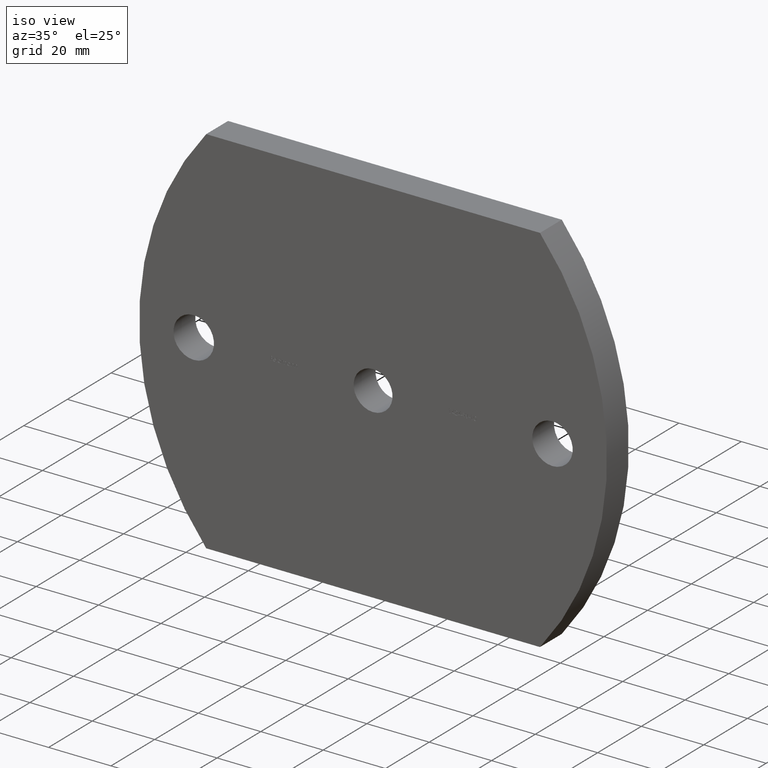
[diagram: clean part render]
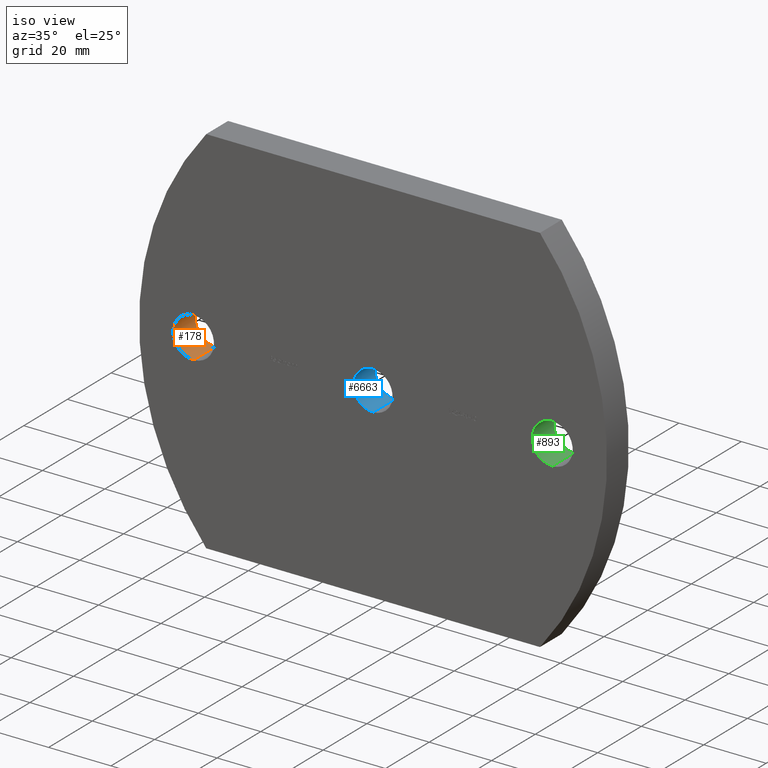
[diagram: same view with three faces highlighted in distinct colors, each labeled with its STEP entity id]
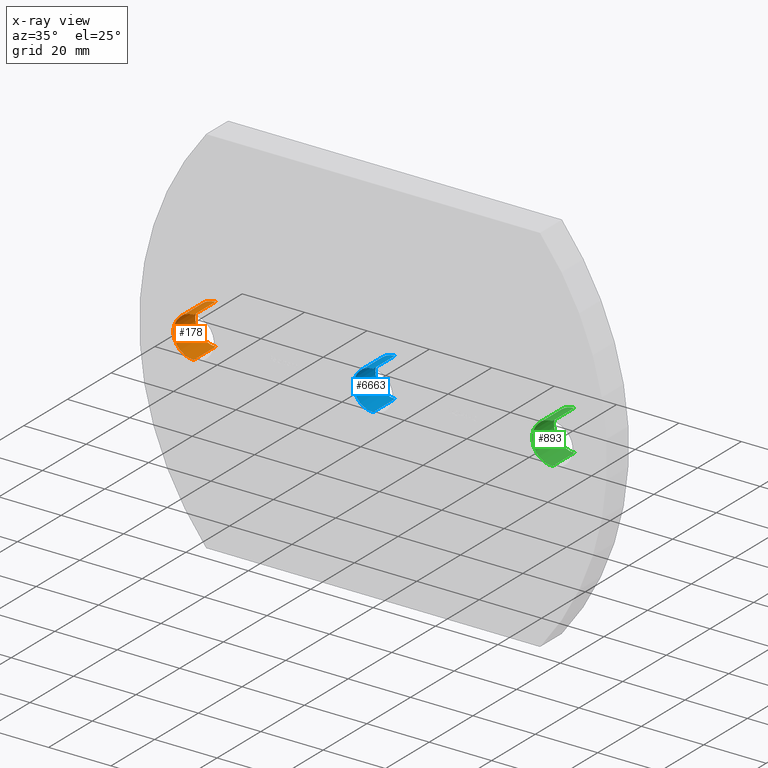
[diagram: x-ray of the same camera — body ghosted, the three highlighted faces saturated]
A machine part, iso view with three faces highlighted in distinct colors.
The next image is the same camera in x-ray (body ghosted, the three faces saturated) — at least one of them is partly hidden behind the body in this view.
Their STEP definitions:

[orange] entity #178 — the highlighted cylindrical surface (edge-blend (fillet) strip) has radius 6.5 mm, axis along (-0, 1, -0).
#178 = ADVANCED_FACE ( 'NONE', ( #269 ), #8909, .F. ) ;
#269 = FACE_OUTER_BOUND ( 'NONE', #1203, .T. ) ;
#378 = ORIENTED_EDGE ( 'NONE', *, *, #2767, .T. ) ;
#464 = EDGE_CURVE ( 'NONE', #10094, #6826, #5516, .T. ) ;
#664 = DIRECTION ( 'NONE',  ( 0.0000000000000000000, 0.0000000000000000000, 1.000000000000000000 ) ) ;
#1203 = EDGE_LOOP ( 'NONE', ( #5629, #378, #7444, #3037 ) ) ;
#1397 = CARTESIAN_POINT ( 'NONE',  ( -57.50000000000000000, 0.0000000000000000000, -6.500000000000000900 ) ) ;
#1818 = LINE ( 'NONE', #10054, #7800 ) ;
#1913 = DIRECTION ( 'NONE',  ( 0.0000000000000000000, 0.0000000000000000000, 1.000000000000000000 ) ) ;
#2084 = DIRECTION ( 'NONE',  ( 0.0000000000000000000, 1.000000000000000000, 0.0000000000000000000 ) ) ;
#2468 = CARTESIAN_POINT ( 'NONE',  ( -57.50000000000000000, 10.00000000000000000, -6.500000000000000900 ) ) ;
#2767 = EDGE_CURVE ( 'NONE', #4330, #6836, #1818, .T. ) ;
#3008 = CARTESIAN_POINT ( 'NONE',  ( -57.50000000000000000, 0.0000000000000000000, 6.500000000000000900 ) ) ;
#3037 = ORIENTED_EDGE ( 'NONE', *, *, #464, .F. ) ;
#4330 = VERTEX_POINT ( 'NONE', #1397 ) ;
#4344 = CARTESIAN_POINT ( 'NONE',  ( -57.50000000000000000, 0.0000000000000000000, 0.0000000000000000000 ) ) ;
#4585 = CARTESIAN_POINT ( 'NONE',  ( -57.50000000000000000, 0.0000000000000000000, 0.0000000000000000000 ) ) ;
#4904 = AXIS2_PLACEMENT_3D ( 'NONE', #4585, #7713, #664 ) ;
#5068 = DIRECTION ( 'NONE',  ( 0.0000000000000000000, 0.0000000000000000000, 1.000000000000000000 ) ) ;
#5466 = AXIS2_PLACEMENT_3D ( 'NONE', #7233, #6483, #1913 ) ;
#5516 = LINE ( 'NONE', #3008, #7102 ) ;
#5629 = ORIENTED_EDGE ( 'NONE', *, *, #9588, .F. ) ;
#5703 = CIRCLE ( 'NONE', #5466, 6.500000000000000900 ) ;
#6483 = DIRECTION ( 'NONE',  ( 0.0000000000000000000, 1.000000000000000000, 0.0000000000000000000 ) ) ;
#6826 = VERTEX_POINT ( 'NONE', #9459 ) ;
#6836 = VERTEX_POINT ( 'NONE', #2468 ) ;
#7102 = VECTOR ( 'NONE', #8449, 1000.000000000000000 ) ;
#7233 = CARTESIAN_POINT ( 'NONE',  ( -57.50000000000000000, 10.00000000000000000, 0.0000000000000000000 ) ) ;
#7322 = CARTESIAN_POINT ( 'NONE',  ( -57.50000000000000000, 0.0000000000000000000, 6.500000000000000900 ) ) ;
#7444 = ORIENTED_EDGE ( 'NONE', *, *, #9520, .T. ) ;
#7569 = AXIS2_PLACEMENT_3D ( 'NONE', #4344, #2084, #5068 ) ;
#7713 = DIRECTION ( 'NONE',  ( -0.0000000000000000000, 1.000000000000000000, -0.0000000000000000000 ) ) ;
#7800 = VECTOR ( 'NONE', #9201, 1000.000000000000000 ) ;
#8449 = DIRECTION ( 'NONE',  ( -0.0000000000000000000, 1.000000000000000000, -0.0000000000000000000 ) ) ;
#8606 = CIRCLE ( 'NONE', #7569, 6.500000000000000900 ) ;
#8909 = CYLINDRICAL_SURFACE ( 'NONE', #4904, 6.500000000000000900 ) ;
#9201 = DIRECTION ( 'NONE',  ( -0.0000000000000000000, 1.000000000000000000, -0.0000000000000000000 ) ) ;
#9459 = CARTESIAN_POINT ( 'NONE',  ( -57.50000000000000000, 10.00000000000000000, 6.500000000000000900 ) ) ;
#9520 = EDGE_CURVE ( 'NONE', #6836, #6826, #5703, .T. ) ;
#9588 = EDGE_CURVE ( 'NONE', #4330, #10094, #8606, .T. ) ;
#10054 = CARTESIAN_POINT ( 'NONE',  ( -57.50000000000000000, 0.0000000000000000000, -6.500000000000000900 ) ) ;
#10094 = VERTEX_POINT ( 'NONE', #7322 ) ;

[blue] entity #6663 — the highlighted cylindrical surface (edge-blend (fillet) strip) has radius 6.25 mm, axis along (-0, 1, -0).
#293 = VERTEX_POINT ( 'NONE', #5655 ) ;
#571 = CARTESIAN_POINT ( 'NONE',  ( 0.0000000000000000000, 0.0000000000000000000, 6.250000000000000000 ) ) ;
#575 = EDGE_CURVE ( 'NONE', #4082, #1306, #2472, .T. ) ;
#717 = CARTESIAN_POINT ( 'NONE',  ( 0.0000000000000000000, 0.0000000000000000000, 0.0000000000000000000 ) ) ;
#836 = DIRECTION ( 'NONE',  ( 0.0000000000000000000, 0.0000000000000000000, 1.000000000000000000 ) ) ;
#1149 = CARTESIAN_POINT ( 'NONE',  ( 7.654042494670957600E-016, 0.0000000000000000000, -6.250000000000000000 ) ) ;
#1293 = DIRECTION ( 'NONE',  ( -0.0000000000000000000, 1.000000000000000000, -0.0000000000000000000 ) ) ;
#1306 = VERTEX_POINT ( 'NONE', #6163 ) ;
#1722 = EDGE_CURVE ( 'NONE', #1306, #293, #9985, .T. ) ;
#2003 = ORIENTED_EDGE ( 'NONE', *, *, #1722, .T. ) ;
#2045 = ORIENTED_EDGE ( 'NONE', *, *, #2156, .F. ) ;
#2156 = EDGE_CURVE ( 'NONE', #7478, #293, #8632, .T. ) ;
#2472 = LINE ( 'NONE', #1149, #4071 ) ;
#2808 = DIRECTION ( 'NONE',  ( 0.0000000000000000000, 1.000000000000000000, 0.0000000000000000000 ) ) ;
#2811 = EDGE_LOOP ( 'NONE', ( #8690, #2971, #2003, #2045 ) ) ;
#2971 = ORIENTED_EDGE ( 'NONE', *, *, #575, .T. ) ;
#3801 = DIRECTION ( 'NONE',  ( -0.0000000000000000000, 1.000000000000000000, -0.0000000000000000000 ) ) ;
#3980 = AXIS2_PLACEMENT_3D ( 'NONE', #717, #3801, #8502 ) ;
#4071 = VECTOR ( 'NONE', #9270, 1000.000000000000000 ) ;
#4082 = VERTEX_POINT ( 'NONE', #8812 ) ;
#4863 = VECTOR ( 'NONE', #1293, 1000.000000000000000 ) ;
#5245 = CARTESIAN_POINT ( 'NONE',  ( 0.0000000000000000000, 0.0000000000000000000, 6.250000000000000000 ) ) ;
#5252 = FACE_OUTER_BOUND ( 'NONE', #2811, .T. ) ;
#5620 = DIRECTION ( 'NONE',  ( 0.0000000000000000000, 1.000000000000000000, 0.0000000000000000000 ) ) ;
#5655 = CARTESIAN_POINT ( 'NONE',  ( 0.0000000000000000000, 10.00000000000000000, 6.250000000000000000 ) ) ;
#6163 = CARTESIAN_POINT ( 'NONE',  ( 7.654042494670957600E-016, 10.00000000000000000, -6.250000000000000000 ) ) ;
#6663 = ADVANCED_FACE ( 'NONE', ( #5252 ), #9748, .F. ) ;
#6752 = AXIS2_PLACEMENT_3D ( 'NONE', #7467, #2808, #8194 ) ;
#7467 = CARTESIAN_POINT ( 'NONE',  ( 0.0000000000000000000, 10.00000000000000000, 0.0000000000000000000 ) ) ;
#7478 = VERTEX_POINT ( 'NONE', #571 ) ;
#7752 = EDGE_CURVE ( 'NONE', #4082, #7478, #8417, .T. ) ;
#7909 = CARTESIAN_POINT ( 'NONE',  ( 0.0000000000000000000, 0.0000000000000000000, 0.0000000000000000000 ) ) ;
#8016 = AXIS2_PLACEMENT_3D ( 'NONE', #7909, #5620, #836 ) ;
#8194 = DIRECTION ( 'NONE',  ( 0.0000000000000000000, 0.0000000000000000000, 1.000000000000000000 ) ) ;
#8417 = CIRCLE ( 'NONE', #8016, 6.250000000000000000 ) ;
#8502 = DIRECTION ( 'NONE',  ( 0.0000000000000000000, 0.0000000000000000000, 1.000000000000000000 ) ) ;
#8632 = LINE ( 'NONE', #5245, #4863 ) ;
#8690 = ORIENTED_EDGE ( 'NONE', *, *, #7752, .F. ) ;
#8812 = CARTESIAN_POINT ( 'NONE',  ( 7.654042494670957600E-016, 0.0000000000000000000, -6.250000000000000000 ) ) ;
#9270 = DIRECTION ( 'NONE',  ( -0.0000000000000000000, 1.000000000000000000, -0.0000000000000000000 ) ) ;
#9748 = CYLINDRICAL_SURFACE ( 'NONE', #3980, 6.250000000000000000 ) ;
#9985 = CIRCLE ( 'NONE', #6752, 6.250000000000000000 ) ;

[green] entity #893 — the highlighted cylindrical surface (edge-blend (fillet) strip) has radius 6.5 mm, axis along (-0, 1, -0).
#34 = VERTEX_POINT ( 'NONE', #5172 ) ;
#424 = VECTOR ( 'NONE', #6109, 1000.000000000000000 ) ;
#617 = CARTESIAN_POINT ( 'NONE',  ( 57.50000000000000000, 0.0000000000000000000, 6.499999999999994700 ) ) ;
#703 = VERTEX_POINT ( 'NONE', #6906 ) ;
#893 = ADVANCED_FACE ( 'NONE', ( #3949 ), #4640, .F. ) ;
#1529 = ORIENTED_EDGE ( 'NONE', *, *, #5555, .T. ) ;
#1892 = CARTESIAN_POINT ( 'NONE',  ( 57.50000000000000000, 10.00000000000000000, -6.499999999999994700 ) ) ;
#1923 = DIRECTION ( 'NONE',  ( 0.0000000000000000000, 0.0000000000000000000, 1.000000000000000000 ) ) ;
#2265 = VECTOR ( 'NONE', #4110, 1000.000000000000000 ) ;
#2773 = CARTESIAN_POINT ( 'NONE',  ( 57.50000000000000000, 0.0000000000000000000, 0.0000000000000000000 ) ) ;
#2876 = ORIENTED_EDGE ( 'NONE', *, *, #3759, .F. ) ;
#3442 = EDGE_CURVE ( 'NONE', #34, #9382, #8380, .T. ) ;
#3648 = EDGE_CURVE ( 'NONE', #703, #6178, #9930, .T. ) ;
#3759 = EDGE_CURVE ( 'NONE', #703, #34, #4116, .T. ) ;
#3949 = FACE_OUTER_BOUND ( 'NONE', #5344, .T. ) ;
#4110 = DIRECTION ( 'NONE',  ( -0.0000000000000000000, 1.000000000000000000, -0.0000000000000000000 ) ) ;
#4116 = CIRCLE ( 'NONE', #7412, 6.499999999999994700 ) ;
#4134 = CARTESIAN_POINT ( 'NONE',  ( 57.50000000000000000, 0.0000000000000000000, 0.0000000000000000000 ) ) ;
#4640 = CYLINDRICAL_SURFACE ( 'NONE', #6733, 6.499999999999994700 ) ;
#5172 = CARTESIAN_POINT ( 'NONE',  ( 57.50000000000000000, 0.0000000000000000000, 6.499999999999994700 ) ) ;
#5258 = AXIS2_PLACEMENT_3D ( 'NONE', #10033, #9313, #5381 ) ;
#5344 = EDGE_LOOP ( 'NONE', ( #2876, #8802, #1529, #6719 ) ) ;
#5381 = DIRECTION ( 'NONE',  ( 0.0000000000000000000, 0.0000000000000000000, 1.000000000000000000 ) ) ;
#5386 = CIRCLE ( 'NONE', #5258, 6.499999999999994700 ) ;
#5555 = EDGE_CURVE ( 'NONE', #6178, #9382, #5386, .T. ) ;
#5935 = DIRECTION ( 'NONE',  ( 0.0000000000000000000, 0.0000000000000000000, 1.000000000000000000 ) ) ;
#6109 = DIRECTION ( 'NONE',  ( -0.0000000000000000000, 1.000000000000000000, -0.0000000000000000000 ) ) ;
#6178 = VERTEX_POINT ( 'NONE', #1892 ) ;
#6719 = ORIENTED_EDGE ( 'NONE', *, *, #3442, .F. ) ;
#6733 = AXIS2_PLACEMENT_3D ( 'NONE', #4134, #8041, #1923 ) ;
#6906 = CARTESIAN_POINT ( 'NONE',  ( 57.50000000000000000, 0.0000000000000000000, -6.499999999999994700 ) ) ;
#7412 = AXIS2_PLACEMENT_3D ( 'NONE', #2773, #9754, #5935 ) ;
#7996 = CARTESIAN_POINT ( 'NONE',  ( 57.50000000000000000, 10.00000000000000000, 6.499999999999994700 ) ) ;
#8041 = DIRECTION ( 'NONE',  ( -0.0000000000000000000, 1.000000000000000000, -0.0000000000000000000 ) ) ;
#8380 = LINE ( 'NONE', #617, #424 ) ;
#8802 = ORIENTED_EDGE ( 'NONE', *, *, #3648, .T. ) ;
#9313 = DIRECTION ( 'NONE',  ( 0.0000000000000000000, 1.000000000000000000, 0.0000000000000000000 ) ) ;
#9382 = VERTEX_POINT ( 'NONE', #7996 ) ;
#9558 = CARTESIAN_POINT ( 'NONE',  ( 57.50000000000000000, 0.0000000000000000000, -6.499999999999994700 ) ) ;
#9754 = DIRECTION ( 'NONE',  ( 0.0000000000000000000, 1.000000000000000000, 0.0000000000000000000 ) ) ;
#9930 = LINE ( 'NONE', #9558, #2265 ) ;
#10033 = CARTESIAN_POINT ( 'NONE',  ( 57.50000000000000000, 10.00000000000000000, 0.0000000000000000000 ) ) ;